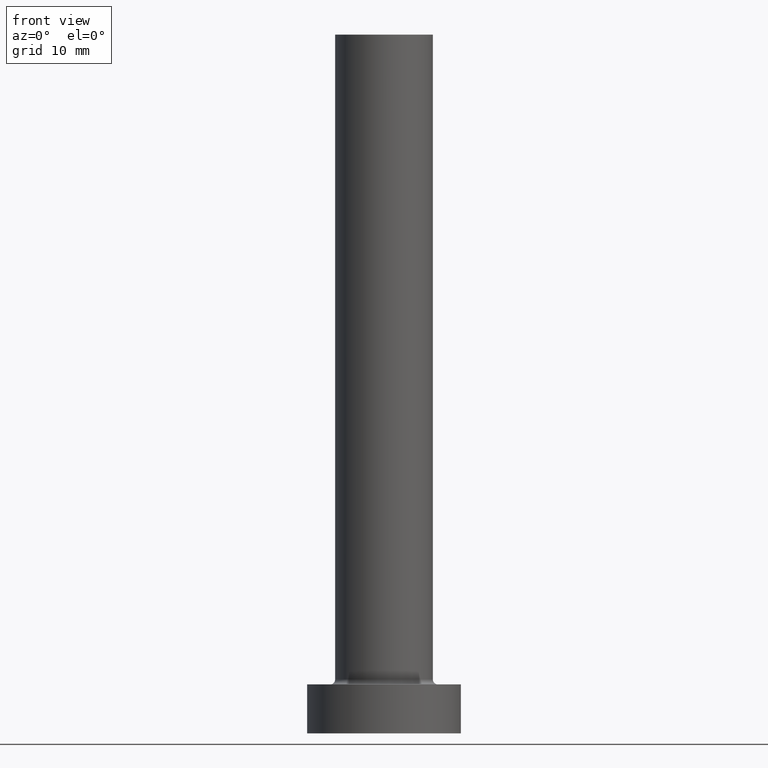
[diagram: clean part render]
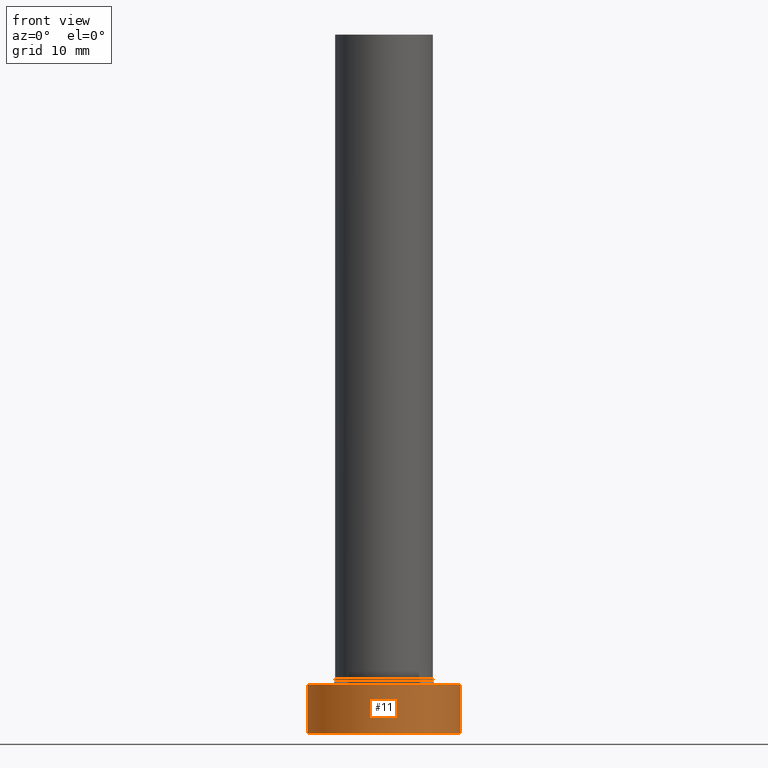
[diagram: same view with one face highlighted and labeled with its STEP entity id]
A machine part, front view. The second image highlights one B-rep face of the part: STEP entity #11.
In plain terms, the highlighted cylindrical surface (partial cylindrical patch) has radius 11 mm, axis along (-0, -0, -1).
Its self-contained STEP definition (entity closure, byte-faithful):
#2 = ORIENTED_EDGE ( 'NONE', *, *, #4, .T. ) ;
#4 = EDGE_CURVE ( 'NONE', #427, #450, #444, .T. ) ;
#11 = ADVANCED_FACE ( 'NONE', ( #342 ), #408, .T. ) ;
#19 = DIRECTION ( 'NONE',  ( 1.000000000000000000, 0.000000000000000000, 0.000000000000000000 ) ) ;
#29 = EDGE_CURVE ( 'NONE', #427, #305, #161, .T. ) ;
#30 = CARTESIAN_POINT ( 'NONE',  ( 0.000000000000000000, 0.000000000000000000, 7.000000000000000000 ) ) ;
#35 = DIRECTION ( 'NONE',  ( 0.000000000000000000, 0.000000000000000000, 1.000000000000000000 ) ) ;
#46 = AXIS2_PLACEMENT_3D ( 'NONE', #176, #442, #19 ) ;
#59 = CARTESIAN_POINT ( 'NONE',  ( 11.00000000000000000, 1.347111479062088405E-15, 7.000000000000000000 ) ) ;
#67 = VERTEX_POINT ( 'NONE', #319 ) ;
#93 = DIRECTION ( 'NONE',  ( -1.000000000000000000, 0.000000000000000000, 0.000000000000000000 ) ) ;
#103 = DIRECTION ( 'NONE',  ( -0.000000000000000000, -0.000000000000000000, -1.000000000000000000 ) ) ;
#110 = ORIENTED_EDGE ( 'NONE', *, *, #29, .F. ) ;
#130 = DIRECTION ( 'NONE',  ( -0.000000000000000000, -0.000000000000000000, -1.000000000000000000 ) ) ;
#132 = DIRECTION ( 'NONE',  ( -0.000000000000000000, -0.000000000000000000, -1.000000000000000000 ) ) ;
#161 = CIRCLE ( 'NONE', #46, 11.00000000000000000 ) ;
#176 = CARTESIAN_POINT ( 'NONE',  ( 0.000000000000000000, 0.000000000000000000, 7.000000000000000000 ) ) ;
#184 = DIRECTION ( 'NONE',  ( 1.000000000000000000, 0.000000000000000000, 0.000000000000000000 ) ) ;
#206 = EDGE_CURVE ( 'NONE', #450, #67, #372, .T. ) ;
#250 = CARTESIAN_POINT ( 'NONE',  ( -11.00000000000000000, 0.000000000000000000, 7.000000000000000000 ) ) ;
#271 = ORIENTED_EDGE ( 'NONE', *, *, #206, .T. ) ;
#284 = CARTESIAN_POINT ( 'NONE',  ( 11.00000000000000000, 1.347111479062088405E-15, 7.000000000000000000 ) ) ;
#305 = VERTEX_POINT ( 'NONE', #59 ) ;
#319 = CARTESIAN_POINT ( 'NONE',  ( 11.00000000000000000, 1.347111479062088405E-15, 0.000000000000000000 ) ) ;
#335 = AXIS2_PLACEMENT_3D ( 'NONE', #30, #130, #93 ) ;
#342 = FACE_OUTER_BOUND ( 'NONE', #367, .T. ) ;
#349 = AXIS2_PLACEMENT_3D ( 'NONE', #354, #35, #184 ) ;
#354 = CARTESIAN_POINT ( 'NONE',  ( 0.000000000000000000, 0.000000000000000000, 0.000000000000000000 ) ) ;
#359 = VECTOR ( 'NONE', #132, 1000.000000000000000 ) ;
#367 = EDGE_LOOP ( 'NONE', ( #438, #110, #2, #271 ) ) ;
#372 = CIRCLE ( 'NONE', #349, 11.00000000000000000 ) ;
#386 = LINE ( 'NONE', #284, #433 ) ;
#408 = CYLINDRICAL_SURFACE ( 'NONE', #335, 11.00000000000000000 ) ;
#413 = EDGE_CURVE ( 'NONE', #305, #67, #386, .T. ) ;
#419 = CARTESIAN_POINT ( 'NONE',  ( -11.00000000000000000, 0.000000000000000000, 0.000000000000000000 ) ) ;
#427 = VERTEX_POINT ( 'NONE', #250 ) ;
#433 = VECTOR ( 'NONE', #103, 1000.000000000000000 ) ;
#438 = ORIENTED_EDGE ( 'NONE', *, *, #413, .F. ) ;
#442 = DIRECTION ( 'NONE',  ( 0.000000000000000000, 0.000000000000000000, 1.000000000000000000 ) ) ;
#443 = CARTESIAN_POINT ( 'NONE',  ( -11.00000000000000000, 0.000000000000000000, 7.000000000000000000 ) ) ;
#444 = LINE ( 'NONE', #443, #359 ) ;
#450 = VERTEX_POINT ( 'NONE', #419 ) ;